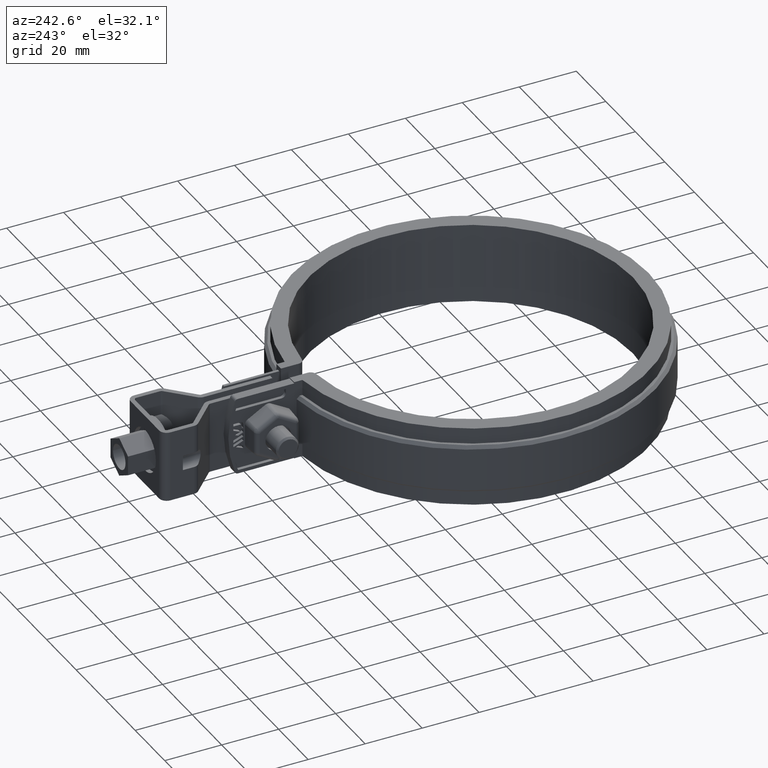
[diagram: clean part render]
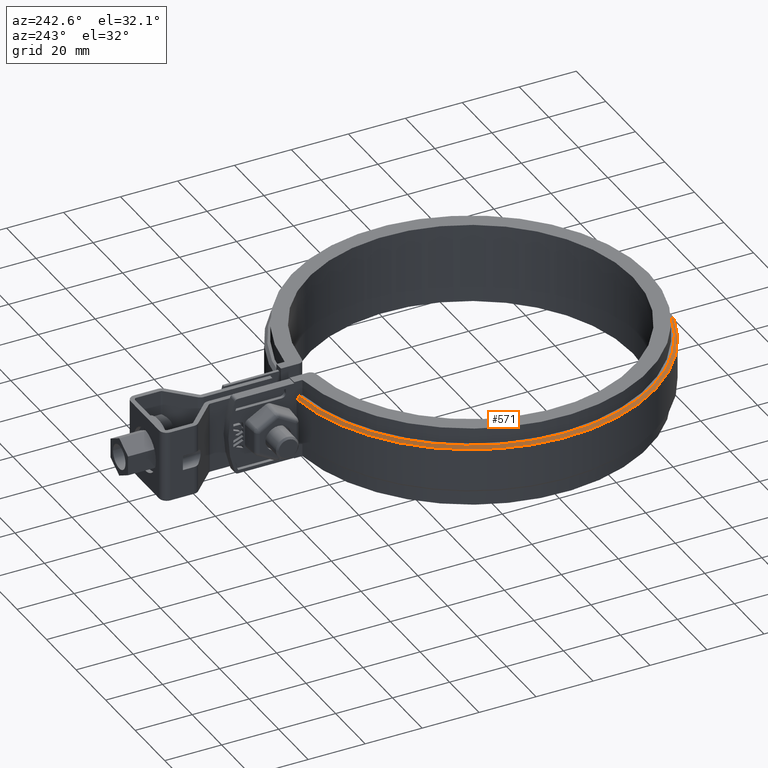
[diagram: same view with one face highlighted and labeled with its STEP entity id]
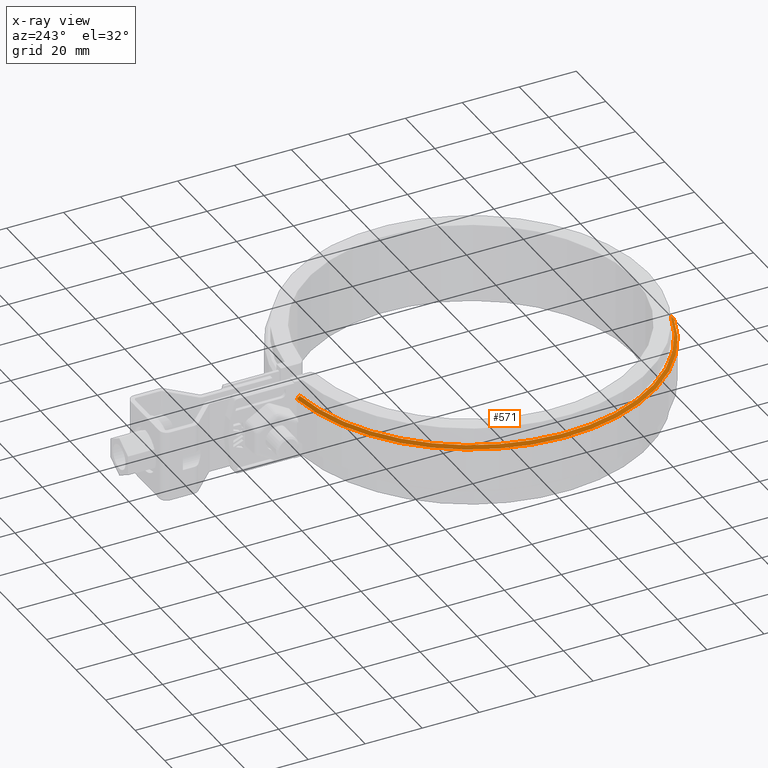
[diagram: x-ray of the same camera — body ghosted, the highlighted face saturated]
A machine part, auxiliary view. The second image highlights one B-rep face of the part: STEP entity #571.
The next image is the same camera in x-ray: the body ghosted, the highlighted face saturated — about 0% of this face is hidden behind the body in this view.
In plain terms, the highlighted conical surface has half-angle 45 deg.
Its self-contained STEP definition (entity closure, byte-faithful):
#571 = ADVANCED_FACE( '', ( #1037 ), #1038, .T. );
#1037 = FACE_OUTER_BOUND( '', #2325, .T. );
#1038 = CONICAL_SURFACE( '', #2326, 63.5000000000000, 0.785398163397448 );
#2325 = EDGE_LOOP( '', ( #4813, #4814, #4815, #4816 ) );
#2326 = AXIS2_PLACEMENT_3D( '', #4817, #4818, #4819 );
#4813 = ORIENTED_EDGE( '', *, *, #6995, .F. );
#4814 = ORIENTED_EDGE( '', *, *, #7075, .F. );
#4815 = ORIENTED_EDGE( '', *, *, #7072, .F. );
#4816 = ORIENTED_EDGE( '', *, *, #7076, .F. );
#4817 = CARTESIAN_POINT( '', ( -8.67361737988404E-016, 1.38777878078145E-014, 8.50000000000000 ) );
#4818 = DIRECTION( '', ( 0.000000000000000, 0.000000000000000, -1.00000000000000 ) );
#4819 = DIRECTION( '', ( -1.00000000000000, 0.000000000000000, 0.000000000000000 ) );
#6995 = EDGE_CURVE( '', #8138, #8140, #8141, .T. );
#7072 = EDGE_CURVE( '', #8260, #8261, #8262, .T. );
#7075 = EDGE_CURVE( '', #8261, #8138, #8265, .F. );
#7076 = EDGE_CURVE( '', #8140, #8260, #8266, .T. );
#8138 = VERTEX_POINT( '', #11895 );
#8140 = VERTEX_POINT( '', #11898 );
#8141 = B_SPLINE_CURVE_WITH_KNOTS( '', 3, ( #11899, #11900, #11901, #11902 ), .UNSPECIFIED., .F., .F., ( 4, 4 ), ( 0.000000000000000, 0.00141734524585473 ), .UNSPECIFIED. );
#8260 = VERTEX_POINT( '', #12108 );
#8261 = VERTEX_POINT( '', #12109 );
#8262 = LINE( '', #12110, #12111 );
#8265 = CIRCLE( '', #12114, 64.5000000000000 );
#8266 = CIRCLE( '', #12115, 63.5000000000000 );
#11895 = CARTESIAN_POINT( '', ( -6.00000000000000, 64.2203238858229, 7.50000000000000 ) );
#11898 = CARTESIAN_POINT( '', ( -6.00000000000000, 63.2158998986806, 8.50000000000000 ) );
#11899 = CARTESIAN_POINT( '', ( -6.00000000000000, 64.2203238858229, 7.50000000000000 ) );
#11900 = CARTESIAN_POINT( '', ( -6.00000000000000, 63.8855273465806, 7.83334484009294 ) );
#11901 = CARTESIAN_POINT( '', ( -6.00000000000000, 63.5507195316811, 8.16667835584444 ) );
#11902 = CARTESIAN_POINT( '', ( -6.00000000000000, 63.2158998986806, 8.50000000000000 ) );
#12108 = CARTESIAN_POINT( '', ( -18.0850354166032, -60.8702020202020, 8.50000000000000 ) );
#12109 = CARTESIAN_POINT( '', ( -18.3698391239513, -61.8287878787879, 7.50000000000000 ) );
#12110 = CARTESIAN_POINT( '', ( -18.0850354166032, -60.8702020202020, 8.50000000000000 ) );
#12111 = VECTOR( '', #14034, 1000.00000000000 );
#12114 = AXIS2_PLACEMENT_3D( '', #14041, #14042, #14043 );
#12115 = AXIS2_PLACEMENT_3D( '', #14044, #14045, #14046 );
#14034 = DIRECTION( '', ( -0.201386632772898, -0.677822560955590, -0.707106781186547 ) );
#14041 = CARTESIAN_POINT( '', ( -8.67361737988404E-016, 1.38777878078145E-014, 7.50000000000000 ) );
#14042 = DIRECTION( '', ( 0.000000000000000, 0.000000000000000, 1.00000000000000 ) );
#14043 = DIRECTION( '', ( 1.00000000000000, 0.000000000000000, 0.000000000000000 ) );
#14044 = CARTESIAN_POINT( '', ( -8.67361737988404E-016, 1.38777878078145E-014, 8.50000000000000 ) );
#14045 = DIRECTION( '', ( 0.000000000000000, 0.000000000000000, 1.00000000000000 ) );
#14046 = DIRECTION( '', ( 1.00000000000000, 0.000000000000000, 0.000000000000000 ) );